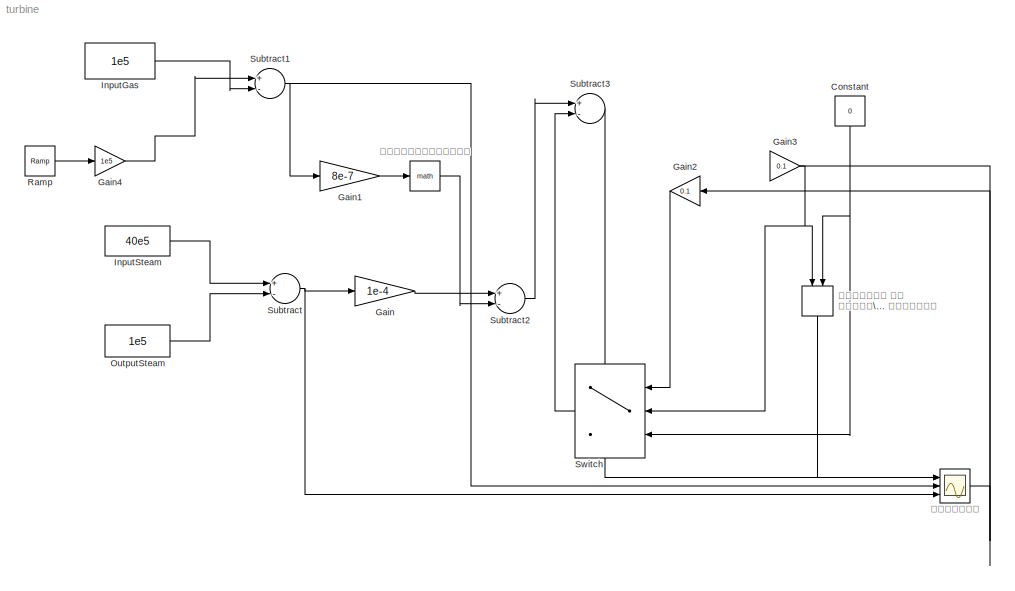
MODEL turbine
KIND model
BLOCK [Constant] Constant
  SID = 21
  Value = 0
BLOCK [Gain] Gain
  Gain = 1e-4
  OutDataTypeStr = Inherit: Inherit via internal rule
  ParamDataTypeStr = Inherit: Inherit via internal rule
  SID = 5
  SaturateOnIntegerOverflow = off
BLOCK [Gain] Gain1
  Gain = 8e-7
  OutDataTypeStr = Inherit: Inherit via internal rule
  ParamDataTypeStr = Inherit: Inherit via internal rule
  SID = 12
  SaturateOnIntegerOverflow = off
BLOCK [Gain] Gain2
  Gain = 0.1
  OutDataTypeStr = Inherit: Inherit via internal rule
  ParamDataTypeStr = Inherit: Inherit via internal rule
  SID = 18
  SaturateOnIntegerOverflow = off
BLOCK [Gain] Gain3
  Gain = 0.1
  OutDataTypeStr = Inherit: Inherit via internal rule
  ParamDataTypeStr = Inherit: Inherit via internal rule
  SID = 19
  SaturateOnIntegerOverflow = off
BLOCK [Gain] Gain4
  Gain = 1e5
  OutDataTypeStr = Inherit: Inherit via internal rule
  ParamDataTypeStr = Inherit: Inherit via internal rule
  SID = 27
  SaturateOnIntegerOverflow = off
BLOCK [Constant] InputGas
  SID = 3
  Value = 1e5
BLOCK [Constant] InputSteam
  SID = 1
  Value = 40e5
BLOCK [Constant] OutputSteam
  SID = 2
  Value = 1e5
BLOCK [Reference] Ramp  REF=simulink/Sources/Ramp
  Ports = [0, 1]
  SID = 26
  SourceBlock = simulink/Sources/Ramp
  SourceType = Ramp
  VectorParams1D = on
  X0 = 1
  slope = 3
  start = 0
BLOCK [Sum] Subtract
  InputSameDT = off
  Inputs = +-
  OutDataTypeStr = Inherit: Inherit via internal rule
  Ports = [2, 1]
  SID = 4
  SaturateOnIntegerOverflow = off
BLOCK [Sum] Subtract1
  InputSameDT = off
  Inputs = +-
  OutDataTypeStr = Inherit: Inherit via internal rule
  Ports = [2, 1]
  SID = 8
  SaturateOnIntegerOverflow = off
BLOCK [Sum] Subtract2
  InputSameDT = off
  Inputs = +-
  OutDataTypeStr = Inherit: Inherit via internal rule
  Ports = [2, 1]
  SID = 14
  SaturateOnIntegerOverflow = off
BLOCK [Sum] Subtract3
  InputSameDT = off
  Inputs = +-
  OutDataTypeStr = Inherit: Inherit via internal rule
  Ports = [2, 1]
  SID = 20
  SaturateOnIntegerOverflow = off
BLOCK [Switch] Switch
  Criteria = u2 > Threshold
  InputSameDT = off
  SID = 24
  SaturateOnIntegerOverflow = off
BLOCK [Integrator] Èíåðöèÿ
  Ports = [1, 1]
  SID = 17
BLOCK [Scope] Îáîðîòû
  DataFormat = StructureWithTime
  Floating = off
  NumInputPorts = 3
  Ports = [3]
  SID = 6
  SampleTime = 0
  ShowLegends = off
  YMax = 5~5~5
  YMin = -5~-5~-5
BLOCK [MinMax] Òóðáèíà íå ìîæåò\nâðàùàòüñÿ îáðàòíî
  Function = max
  InputSameDT = off
  Inputs = 2
  Ports = [2, 1]
  SID = 16
  SaturateOnIntegerOverflow = off
BLOCK [Math] ñîïðîòèâëåíèå
  Ports = [1, 1]
  SID = 11
NET Constant:1 -> Switch:3, Òóðáèíà íå ìîæåò\nâðàùàòüñÿ îáðàòíî:2
LINE Gain1:1 -> ñîïðîòèâëåíèå:1
LINE Gain2:1 -> Switch:1
NET Gain3:1 -> Switch:2, Òóðáèíà íå ìîæåò\nâðàùàòüñÿ îáðàòíî:1
LINE Gain4:1 -> Subtract1:1
LINE Gain:1 -> Subtract2:1
LINE InputGas:1 -> Subtract1:2
LINE InputSteam:1 -> Subtract:1
LINE OutputSteam:1 -> Subtract:2
LINE Ramp:1 -> Gain4:1
NET Subtract1:1 -> Gain1:1, Îáîðîòû:2
LINE Subtract2:1 -> Subtract3:1
LINE Subtract3:1 -> Èíåðöèÿ:1
NET Subtract:1 -> Gain:1, Îáîðîòû:3
LINE Switch:1 -> Subtract3:2
NET Èíåðöèÿ:1 -> Gain2:1, Gain3:1
LINE Òóðáèíà íå ìîæåò\nâðàùàòüñÿ îáðàòíî:1 -> Îáîðîòû:1
LINE ñîïðîòèâëåíèå:1 -> Subtract2:2
note: NET lines group one-source signal fan-out (src -> all destinations, sorted); 1:1 wires keep LINE
